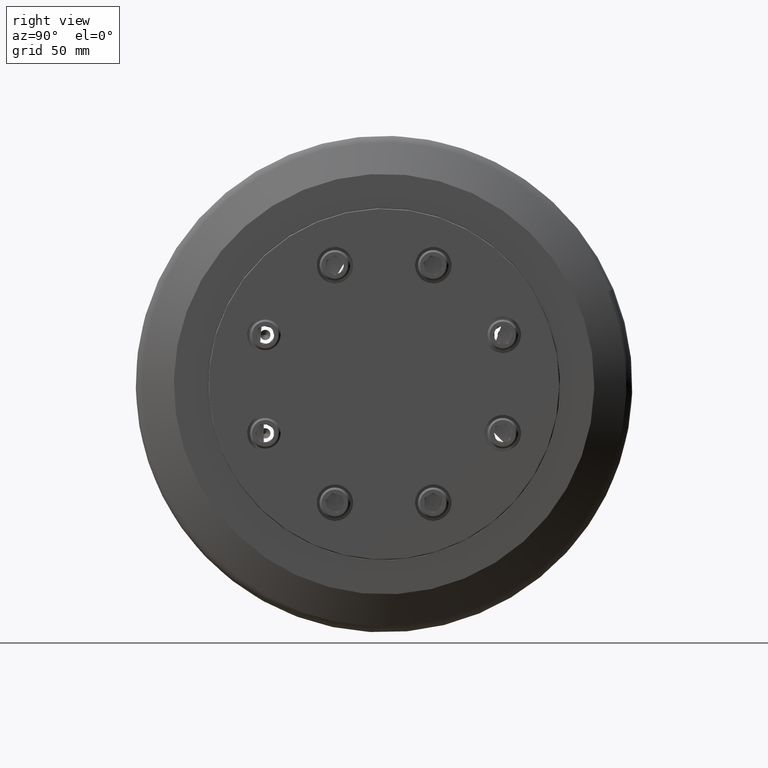
[diagram: clean part render]
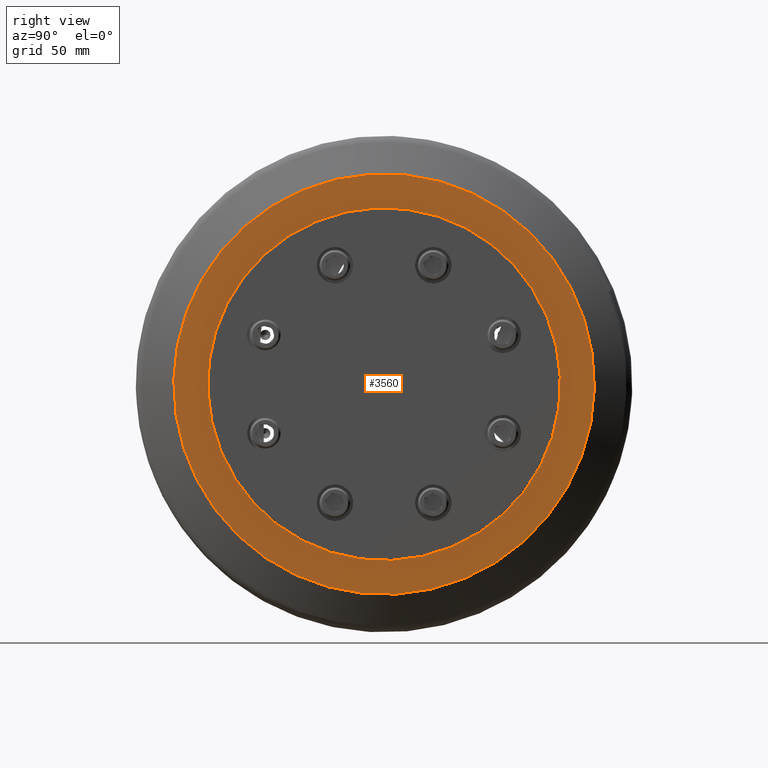
[diagram: same view with one face highlighted and labeled with its STEP entity id]
A machine part, right view. The second image highlights one B-rep face of the part: STEP entity #3560.
In plain terms, the highlighted planar face has unit normal (1, 0, 0).
Its self-contained STEP definition (entity closure, byte-faithful):
#72=FACE_BOUND('',#700,.T.);
#218=CIRCLE('',#3888,144.);
#219=CIRCLE('',#3889,144.);
#223=CIRCLE('',#3896,120.75);
#224=CIRCLE('',#3897,120.75);
#493=FACE_OUTER_BOUND('',#699,.T.);
#699=EDGE_LOOP('',(#2689,#2690));
#700=EDGE_LOOP('',(#2691,#2692));
#1467=VERTEX_POINT('',#5845);
#1468=VERTEX_POINT('',#5846);
#1471=VERTEX_POINT('',#5858);
#1472=VERTEX_POINT('',#5859);
#1914=EDGE_CURVE('',#1467,#1468,#218,.T.);
#1915=EDGE_CURVE('',#1468,#1467,#219,.T.);
#1920=EDGE_CURVE('',#1471,#1472,#223,.T.);
#1921=EDGE_CURVE('',#1472,#1471,#224,.T.);
#2689=ORIENTED_EDGE('',*,*,#1914,.T.);
#2690=ORIENTED_EDGE('',*,*,#1915,.T.);
#2691=ORIENTED_EDGE('',*,*,#1920,.F.);
#2692=ORIENTED_EDGE('',*,*,#1921,.F.);
#3215=PLANE('',#3895);
#3560=ADVANCED_FACE('',(#493,#72),#3215,.T.);
#3888=AXIS2_PLACEMENT_3D('',#5847,#4620,#4621);
#3889=AXIS2_PLACEMENT_3D('',#5848,#4622,#4623);
#3895=AXIS2_PLACEMENT_3D('',#5857,#4635,#4636);
#3896=AXIS2_PLACEMENT_3D('',#5860,#4637,#4638);
#3897=AXIS2_PLACEMENT_3D('',#5861,#4639,#4640);
#4620=DIRECTION('center_axis',(1.,2.13376427274458E-16,1.38050658413677E-30));
#4621=DIRECTION('ref_axis',(-7.23036561126083E-17,0.382683432365089,-0.923879532511287));
#4622=DIRECTION('center_axis',(1.,2.13376427274458E-16,1.38050658413677E-30));
#4623=DIRECTION('ref_axis',(-7.23036561126083E-17,0.382683432365089,-0.923879532511287));
#4635=DIRECTION('center_axis',(1.,2.13376427274458E-16,1.38050658413677E-30));
#4636=DIRECTION('ref_axis',(1.97134113879256E-16,-0.923879532511287,-0.382683432365089));
#4637=DIRECTION('center_axis',(1.,2.13376427274458E-16,1.38050658413677E-30));
#4638=DIRECTION('ref_axis',(-7.23036561126082E-17,0.382683432365089,-0.923879532511287));
#4639=DIRECTION('center_axis',(1.,2.13376427274458E-16,1.38050658413677E-30));
#4640=DIRECTION('ref_axis',(-7.23036561126082E-17,0.382683432365089,-0.923879532511287));
#5845=CARTESIAN_POINT('',(18.2505240960523,-26.0537314830003,-162.688775964073));
#5846=CARTESIAN_POINT('',(18.2505240960523,-136.266560004146,103.388529399177));
#5847=CARTESIAN_POINT('Origin',(18.2505240960523,-81.1601457435732,-29.650123282448));
#5848=CARTESIAN_POINT('Origin',(18.2505240960523,-81.1601457435732,-29.650123282448));
#5857=CARTESIAN_POINT('Origin',(18.2505240960523,-30.5024263842445,-151.94867639863));
#5858=CARTESIAN_POINT('',(18.2505240960523,-34.9511212854887,-141.208576833186));
#5859=CARTESIAN_POINT('',(18.2505240960523,-127.369170201658,81.9083302682898));
#5860=CARTESIAN_POINT('Origin',(18.2505240960523,-81.1601457435732,-29.650123282448));
#5861=CARTESIAN_POINT('Origin',(18.2505240960523,-81.1601457435732,-29.650123282448));